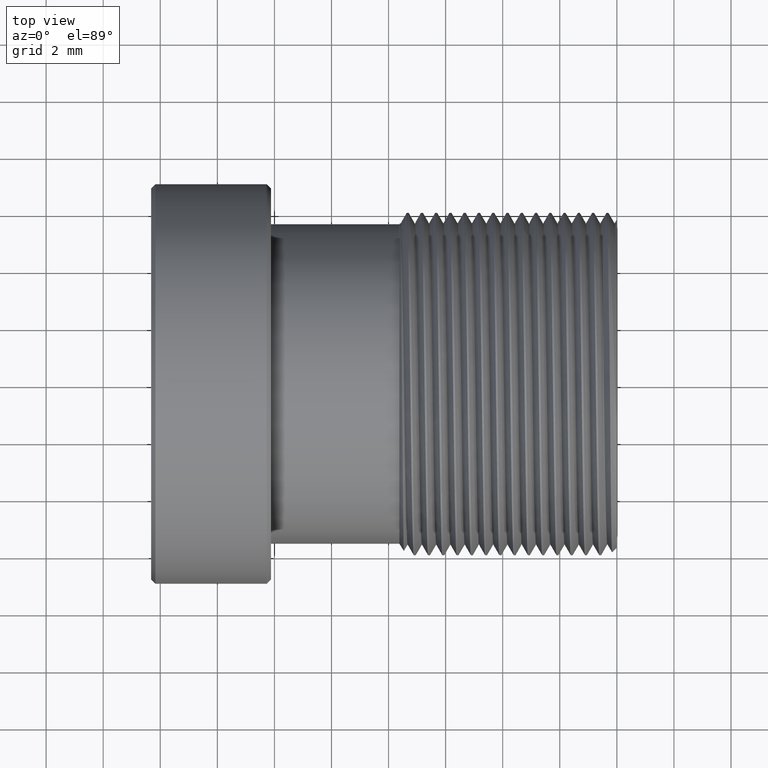
[diagram: clean part render]
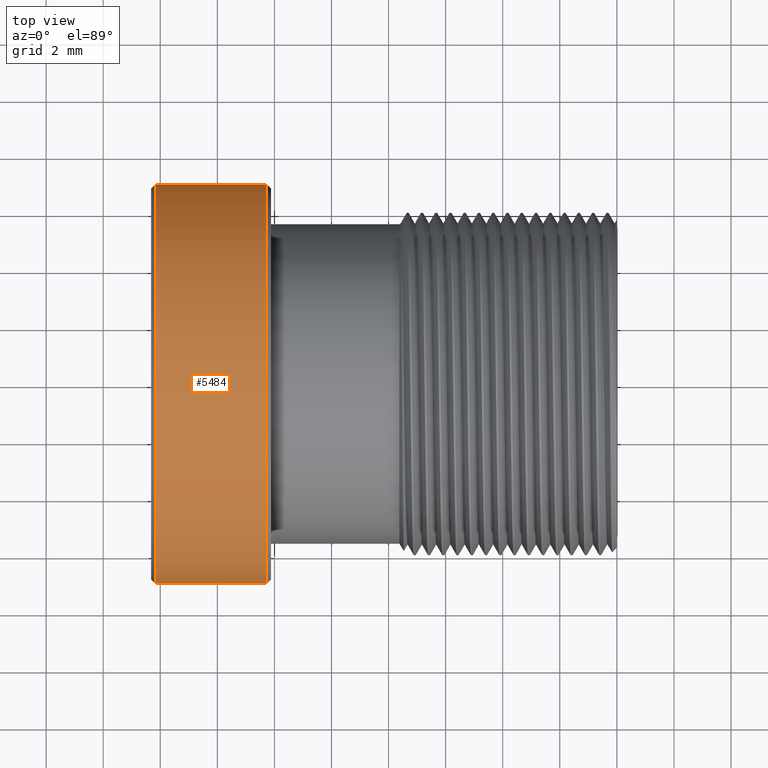
[diagram: same view with one face highlighted and labeled with its STEP entity id]
A machine part, top view. The second image highlights one B-rep face of the part: STEP entity #5484.
In plain terms, the highlighted cylindrical surface (partial cylindrical patch) has radius 7 mm, axis along (-1, 0, 0).
Its self-contained STEP definition (entity closure, byte-faithful):
#2460=DIRECTION('',(-1.E0,0.E0,0.E0));
#2461=VECTOR('',#2460,3.9E0);
#2462=CARTESIAN_POINT('',(-1.227E1,7.E0,0.E0));
#2463=LINE('',#2462,#2461);
#2464=CARTESIAN_POINT('',(-1.227E1,0.E0,0.E0));
#2465=DIRECTION('',(1.E0,0.E0,0.E0));
#2466=DIRECTION('',(0.E0,1.E0,0.E0));
#2467=AXIS2_PLACEMENT_3D('',#2464,#2465,#2466);
#2469=DIRECTION('',(-1.E0,0.E0,0.E0));
#2470=VECTOR('',#2469,3.9E0);
#2471=CARTESIAN_POINT('',(-1.227E1,-7.E0,0.E0));
#2472=LINE('',#2471,#2470);
#2487=CARTESIAN_POINT('',(-1.617E1,0.E0,0.E0));
#2488=DIRECTION('',(1.E0,0.E0,0.E0));
#2489=DIRECTION('',(0.E0,1.E0,0.E0));
#2490=AXIS2_PLACEMENT_3D('',#2487,#2488,#2489);
#2553=CARTESIAN_POINT('',(-1.227E1,7.E0,0.E0));
#2555=VERTEX_POINT('',#2553);
#2556=CARTESIAN_POINT('',(-1.617E1,7.E0,0.E0));
#2557=VERTEX_POINT('',#2556);
#2575=CARTESIAN_POINT('',(-1.227E1,-7.E0,0.E0));
#2577=VERTEX_POINT('',#2575);
#2578=CARTESIAN_POINT('',(-1.617E1,-7.E0,0.E0));
#2579=VERTEX_POINT('',#2578);
#5470=CARTESIAN_POINT('',(8.16E-1,0.E0,0.E0));
#5471=DIRECTION('',(-1.E0,0.E0,0.E0));
#5472=DIRECTION('',(0.E0,1.E0,0.E0));
#5473=AXIS2_PLACEMENT_3D('',#5470,#5471,#5472);
#5474=CYLINDRICAL_SURFACE('',#5473,7.E0);
#5476=ORIENTED_EDGE('',*,*,#5475,.F.);
#5477=ORIENTED_EDGE('',*,*,#5465,.T.);
#5479=ORIENTED_EDGE('',*,*,#5478,.T.);
#5481=ORIENTED_EDGE('',*,*,#5480,.F.);
#5482=EDGE_LOOP('',(#5476,#5477,#5479,#5481));
#5483=FACE_OUTER_BOUND('',#5482,.F.);
#5484=ADVANCED_FACE('',(#5483),#5474,.T.);
#2468=CIRCLE('',#2467,7.E0);
#2491=CIRCLE('',#2490,7.E0);
#5465=EDGE_CURVE('',#2555,#2577,#2468,.T.);
#5475=EDGE_CURVE('',#2555,#2557,#2463,.T.);
#5478=EDGE_CURVE('',#2577,#2579,#2472,.T.);
#5480=EDGE_CURVE('',#2557,#2579,#2491,.T.);